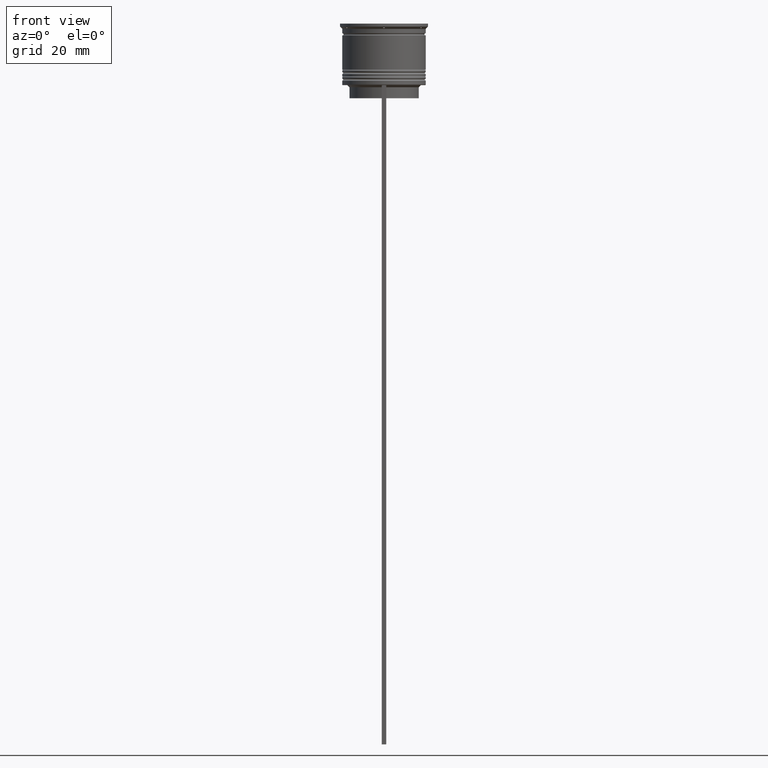
[diagram: clean part render]
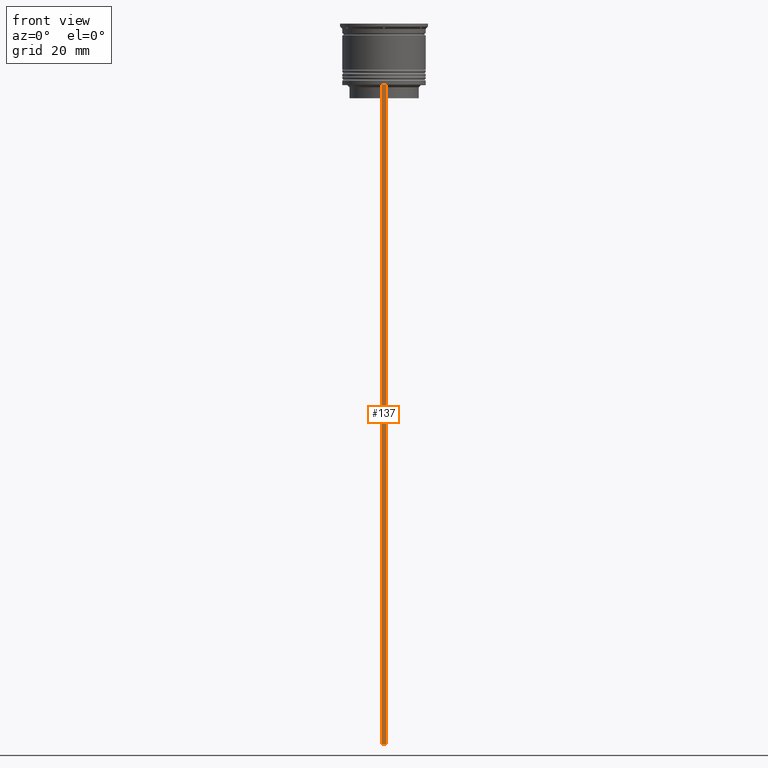
[diagram: same view with one face highlighted and labeled with its STEP entity id]
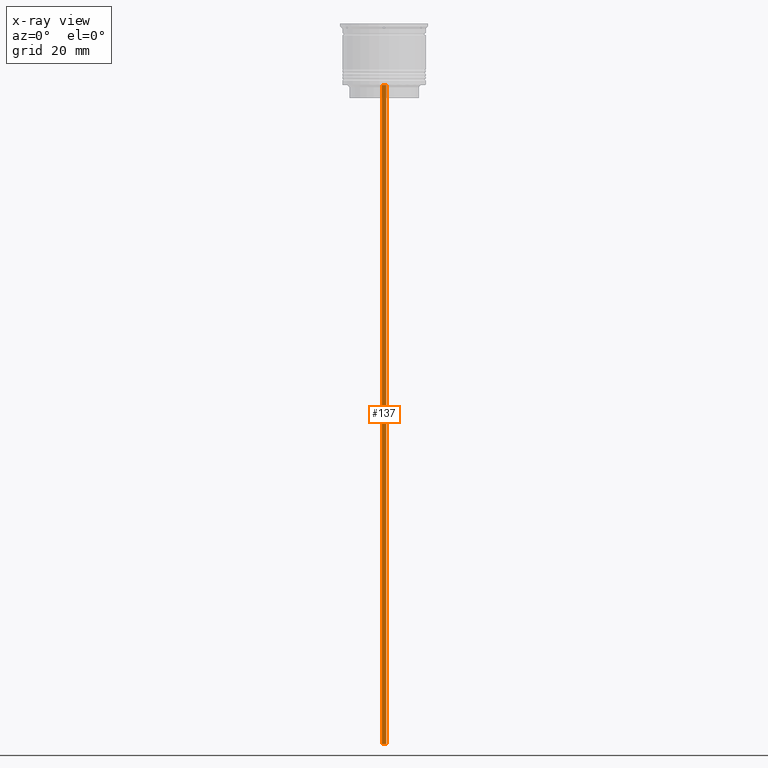
[diagram: x-ray of the same camera — body ghosted, the highlighted face saturated]
A machine part, front view. The second image highlights one B-rep face of the part: STEP entity #137.
The next image is the same camera in x-ray: the body ghosted, the highlighted face saturated — about 0% of this face is hidden behind the body in this view.
In plain terms, the highlighted planar face has unit normal (0, -1, -0).
Its self-contained STEP definition (entity closure, byte-faithful):
#40 = CARTESIAN_POINT ( 'NONE',  ( 0.5000000000000000000, -9.500000000000001776, -14.00000000000000178 ) ) ;
#59 = VECTOR ( 'NONE', #1140, 1000.000000000000000 ) ;
#67 = DIRECTION ( 'NONE',  ( 0.000000000000000000, 0.000000000000000000, -1.000000000000000000 ) ) ;
#137 = ADVANCED_FACE ( 'NONE', ( #1545 ), #2556, .T. ) ;
#300 = CARTESIAN_POINT ( 'NONE',  ( 0.5000000000000000000, -9.500000000000001776, -14.00000000000000178 ) ) ;
#330 = CARTESIAN_POINT ( 'NONE',  ( 0.5000000000000000000, -9.500000000000001776, -163.9999999999999716 ) ) ;
#397 = VERTEX_POINT ( 'NONE', #2231 ) ;
#701 = CARTESIAN_POINT ( 'NONE',  ( 0.5000000000000000000, -9.500000000000001776, 5.026297590440445440 ) ) ;
#715 = CARTESIAN_POINT ( 'NONE',  ( 0.5000000000000000000, -9.500000000000001776, -163.9999999999999716 ) ) ;
#855 = ORIENTED_EDGE ( 'NONE', *, *, #2059, .F. ) ;
#920 = LINE ( 'NONE', #40, #2601 ) ;
#929 = LINE ( 'NONE', #1160, #59 ) ;
#1134 = AXIS2_PLACEMENT_3D ( 'NONE', #701, #2533, #67 ) ;
#1140 = DIRECTION ( 'NONE',  ( 0.000000000000000000, 0.000000000000000000, -1.000000000000000000 ) ) ;
#1160 = CARTESIAN_POINT ( 'NONE',  ( 0.5000000000000000000, -9.500000000000001776, 5.026297590440445440 ) ) ;
#1182 = VECTOR ( 'NONE', #2372, 1000.000000000000000 ) ;
#1278 = VECTOR ( 'NONE', #1487, 1000.000000000000000 ) ;
#1298 = DIRECTION ( 'NONE',  ( 1.000000000000000000, 0.000000000000000000, 0.000000000000000000 ) ) ;
#1427 = ORIENTED_EDGE ( 'NONE', *, *, #1890, .F. ) ;
#1468 = VERTEX_POINT ( 'NONE', #330 ) ;
#1487 = DIRECTION ( 'NONE',  ( 0.000000000000000000, 0.000000000000000000, -1.000000000000000000 ) ) ;
#1545 = FACE_OUTER_BOUND ( 'NONE', #2162, .T. ) ;
#1554 = LINE ( 'NONE', #715, #1182 ) ;
#1641 = ORIENTED_EDGE ( 'NONE', *, *, #2439, .T. ) ;
#1692 = CARTESIAN_POINT ( 'NONE',  ( -0.5000000000000000000, -9.500000000000001776, -14.00000000000000178 ) ) ;
#1870 = LINE ( 'NONE', #2501, #1278 ) ;
#1889 = VERTEX_POINT ( 'NONE', #300 ) ;
#1890 = EDGE_CURVE ( 'NONE', #1468, #397, #1554, .T. ) ;
#2059 = EDGE_CURVE ( 'NONE', #2349, #1889, #920, .T. ) ;
#2162 = EDGE_LOOP ( 'NONE', ( #855, #1641, #1427, #2296 ) ) ;
#2231 = CARTESIAN_POINT ( 'NONE',  ( -0.5000000000000000000, -9.500000000000001776, -163.9999999999999716 ) ) ;
#2296 = ORIENTED_EDGE ( 'NONE', *, *, #2540, .F. ) ;
#2349 = VERTEX_POINT ( 'NONE', #1692 ) ;
#2372 = DIRECTION ( 'NONE',  ( -1.000000000000000000, 0.000000000000000000, 0.000000000000000000 ) ) ;
#2439 = EDGE_CURVE ( 'NONE', #2349, #397, #1870, .T. ) ;
#2501 = CARTESIAN_POINT ( 'NONE',  ( -0.5000000000000000000, -9.500000000000001776, 5.026297590440445440 ) ) ;
#2533 = DIRECTION ( 'NONE',  ( 0.000000000000000000, -1.000000000000000000, -0.000000000000000000 ) ) ;
#2540 = EDGE_CURVE ( 'NONE', #1889, #1468, #929, .T. ) ;
#2556 = PLANE ( 'NONE',  #1134 ) ;
#2601 = VECTOR ( 'NONE', #1298, 1000.000000000000000 ) ;